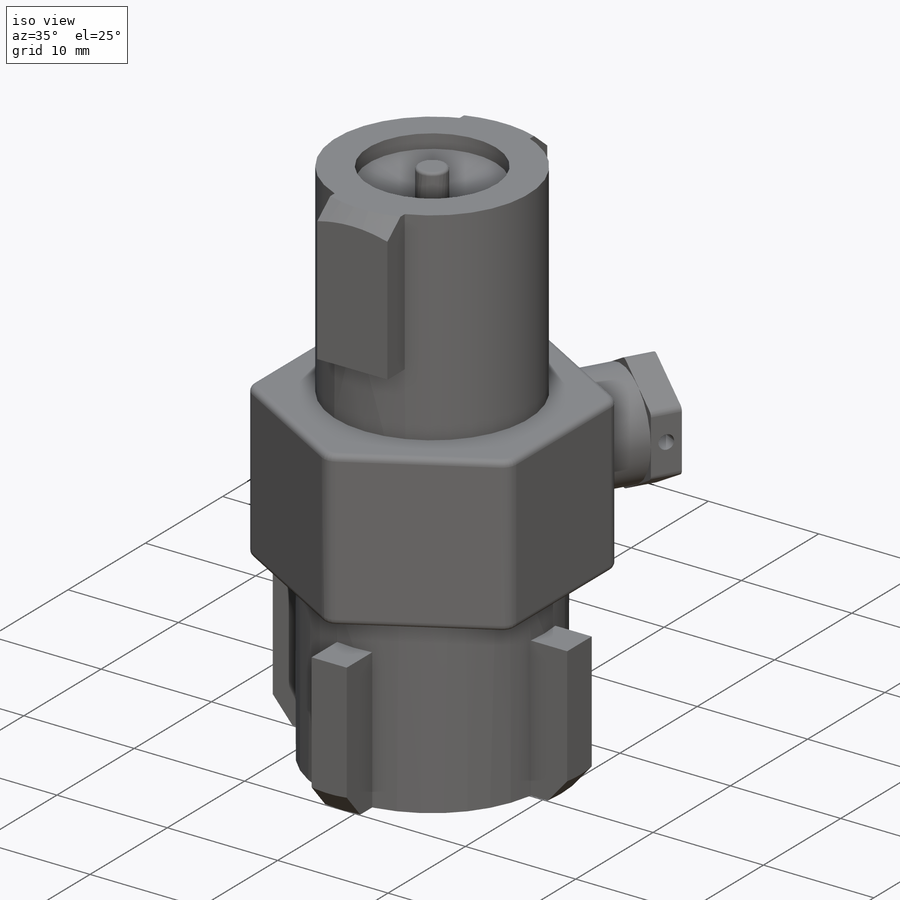
[diagram: iso view]
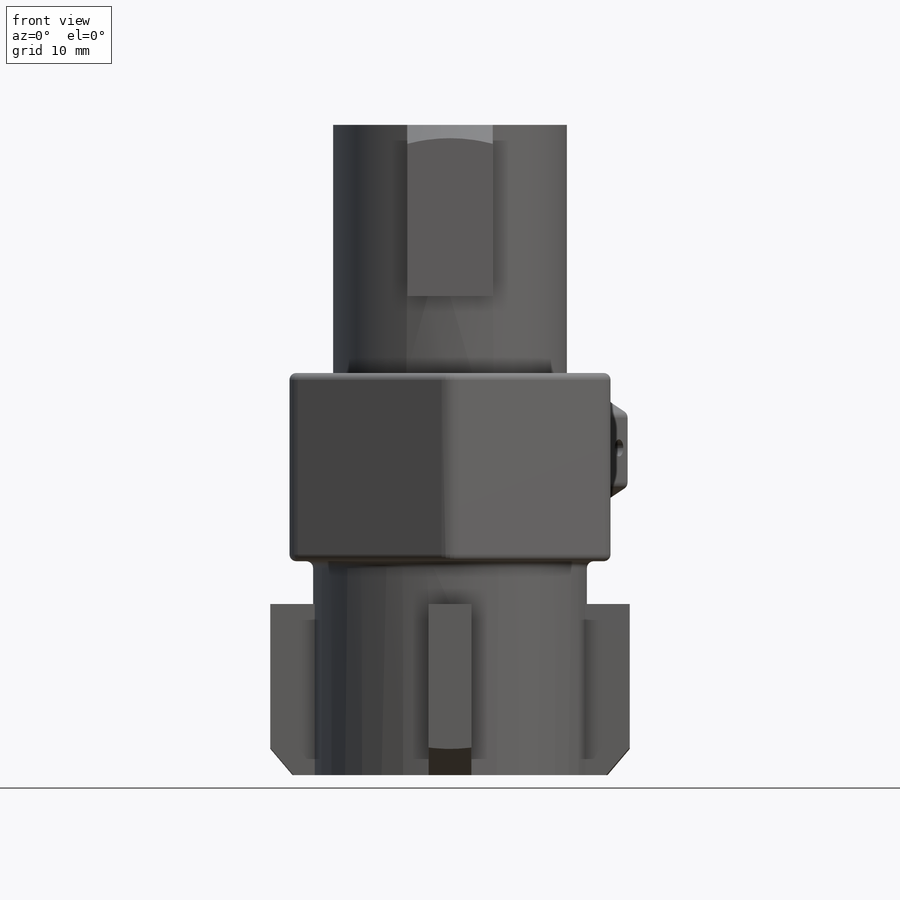
[diagram: front view]
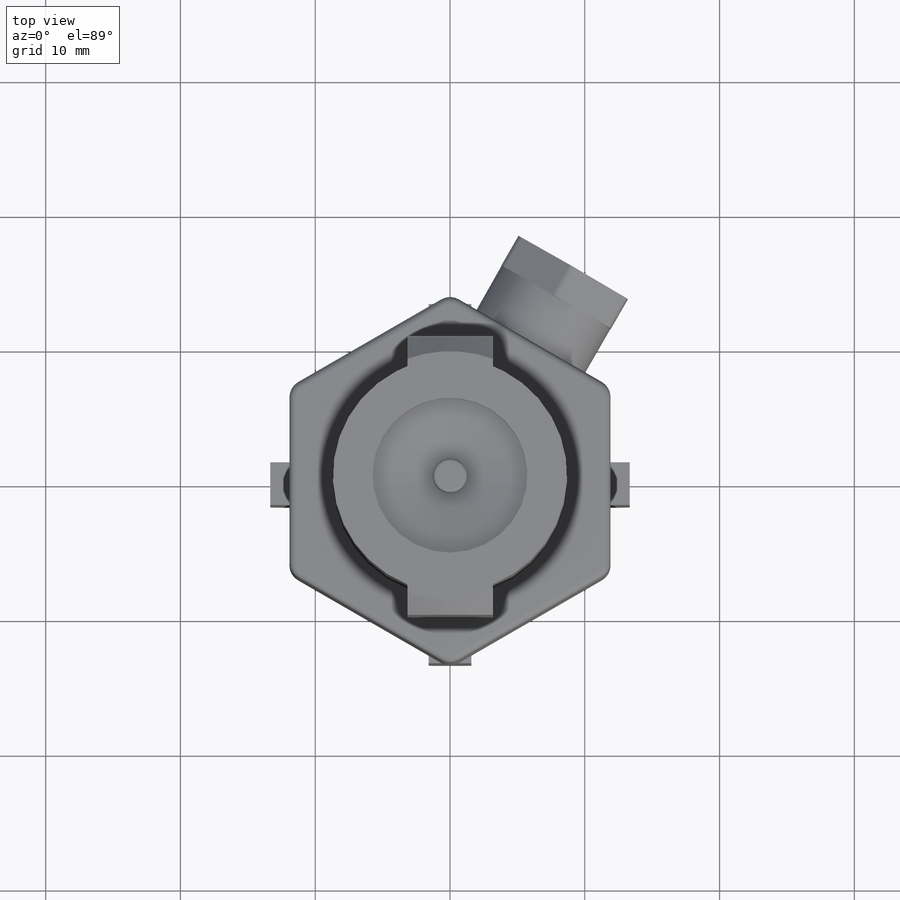
[diagram: top view]
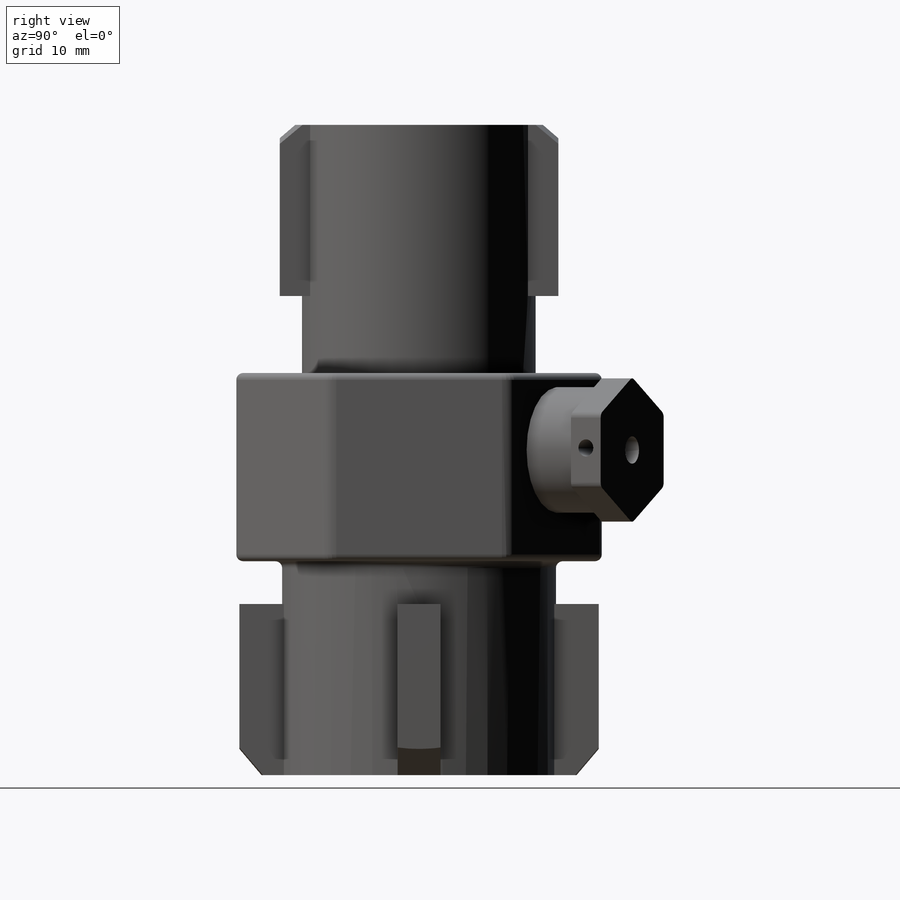
[diagram: right view]
SOLIDWORKS PART (.sldprt)
format: sldprt  version: not decoded by parser v0  size: 674,816 bytes
history: native  units: mm
features: sketch x20, extrude x6, cut_revolve x6, fillet x5, cut_extrude x4, pattern_circular x2, material x1, plane x1, shell x1 (+13 scaffold rows collapsed)
feature tree (59):
  scaffold x13  (default folders/planes/origin — collapsed)
  material  "Brass"
  sketch  "Sketch1"  dims[D1=23.8252mm]
  extrude  "Boss-Extrude1"  Depth=48.26mm
  sketch  "Sketch3"  dims[D1=10.16mm D2=15.875mm D3=31.75mm]
  sketch  "Sketch4"  dims[D1=10.16mm D2=19.05mm D3=1.7526mm]
  cut_revolve  "Cut-Revolve4"  Angle=360deg
  sketch  "Sketch5"  dims[c1.D1=10.3378mm c1.D2=18.415mm c2.D1=10.3378mm]
  cut_revolve  "Cut-Revolve5"  Angle=360deg
  sketch  "Sketch6"  dims[c1.D1=~2.619701mm c1.D2=~59.90859mm c2.D1=8.9789mm c2.D2=6.35mm]
  cut_revolve  "Cut-Revolve6"  Angle=360deg
  sketch  "Sketch7"  dims[D1=~1.766585mm]
  extrude  "Boss-Extrude2"  Depth=3.81mm
  sketch  "Sketch8"  dims[D1=4.6736mm]
  extrude  "Boss-Extrude3"  Depth=2.54mm
  sketch  "Sketch9"
  cut_revolve  "Cut-Revolve7"  Angle=360deg
  sketch  "Sketch10"  dims[D1=5.08mm D2=9.144mm]
  sketch  "Sketch12"  dims[D1=~3.278913mm D2=1.27mm D3=2.54mm]
  cut_extrude  "Cut-Extrude1"  Depth=2.54mm
  fillet  "Fillet1"  Radius=0.508mm
  fillet  "Fillet2"  Radius=0.508mm
  fillet  "Fillet3"  Radius=0.508mm
  sketch  "Sketch13"  dims[D1=2.54mm]
  extrude  "Boss-Extrude4"  [1 undecoded]
  fillet  "Fillet4"  Radius=0.254mm
  sketch  "Sketch16"  dims[D1=17.3736mm D2=25.4mm]
  cut_extrude  "Cut-Extrude2"  [1 undecoded]
  plane  "Plane1"  Offset=6.35mm
  sketch  "Sketch17"  dims[D1=19.812mm]
  sketch  "Sketch22"  dims[D1=1.27mm D2=2.032mm D3=~0.820268mm]
  fillet  "Fillet6"  Radius=1.27mm
  sketch  "Sketch23"  dims[D1=2.032mm]
  cut_extrude  "Cut-Extrude3"  Depth=2.54mm
  shell  "Shell1"  Thickness=1.016mm
  sketch  "Sketch24"  dims[D1=3.175mm D2=6.35mm]
  extrude  "Boss-Extrude6"  Depth=12.7mm
  sketch  "Sketch25"
  cut_extrude  "Cut-Extrude4"  Depth=12.7mm
  pattern_circular  "CirPattern1"  Count=4 Angle=360deg
  sketch  "Sketch27"  dims[D1=2.54mm D2=~1.649895mm]
  cut_revolve  "Cut-Revolve15"  Angle=360deg
  sketch  "Sketch29"  dims[D1=6.35mm D2=3.302mm]
  extrude  "Boss-Extrude7"  Depth=12.7mm
  pattern_circular  "CirPattern2"  Count=2 Angle=360deg
  sketch  "Sketch31"
  cut_revolve  "Cut-Revolve16"  Angle=360deg
decode coverage: 39 of 44 modeling features carry decoded parameters
note: ~ marks probable driven/reference dimensions
note: 2 parameter values undecoded
note: suppression state not decoded; provenance and decode notes live in map.json
